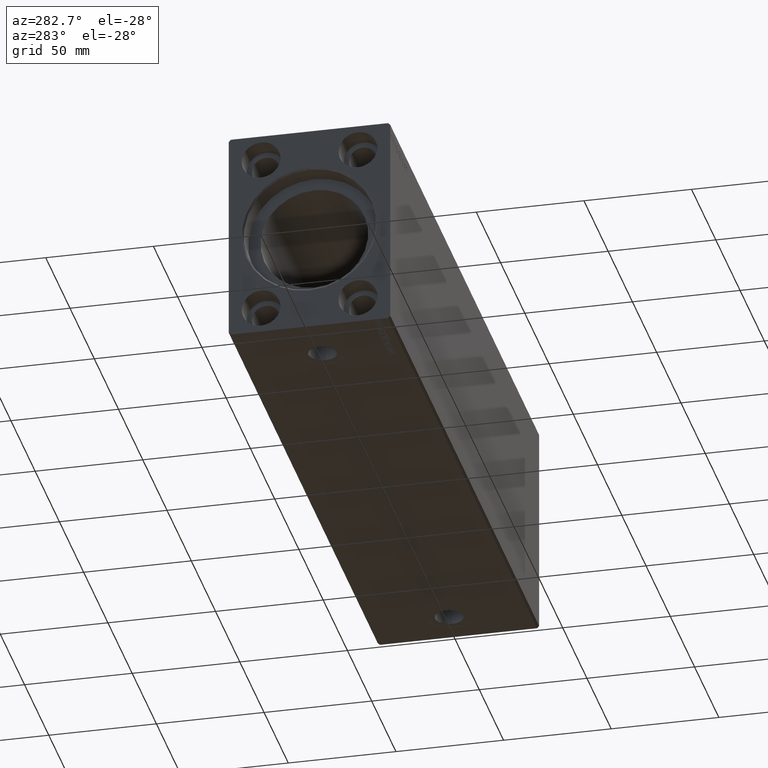
[diagram: clean part render]
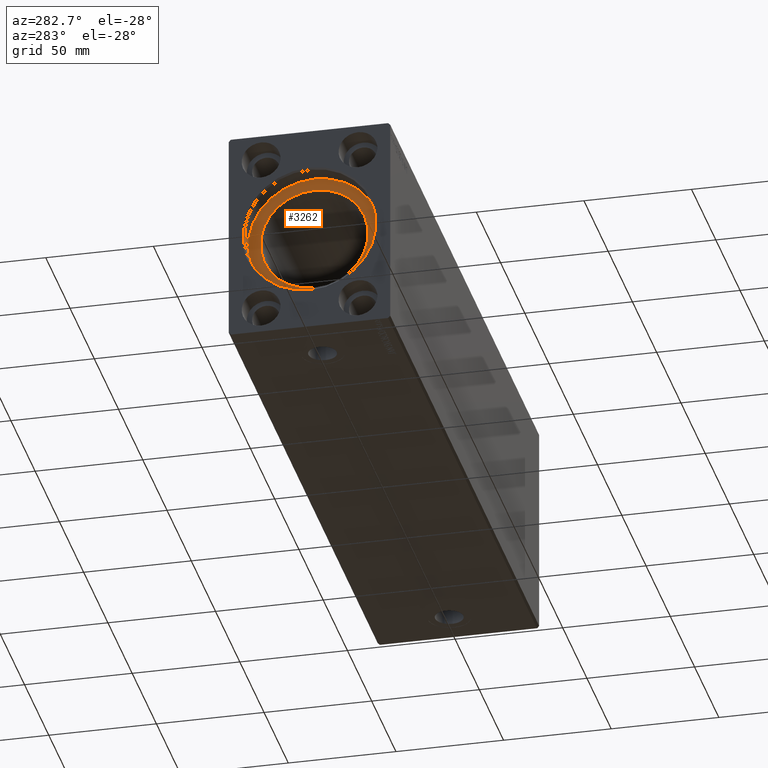
[diagram: same view with one face highlighted and labeled with its STEP entity id]
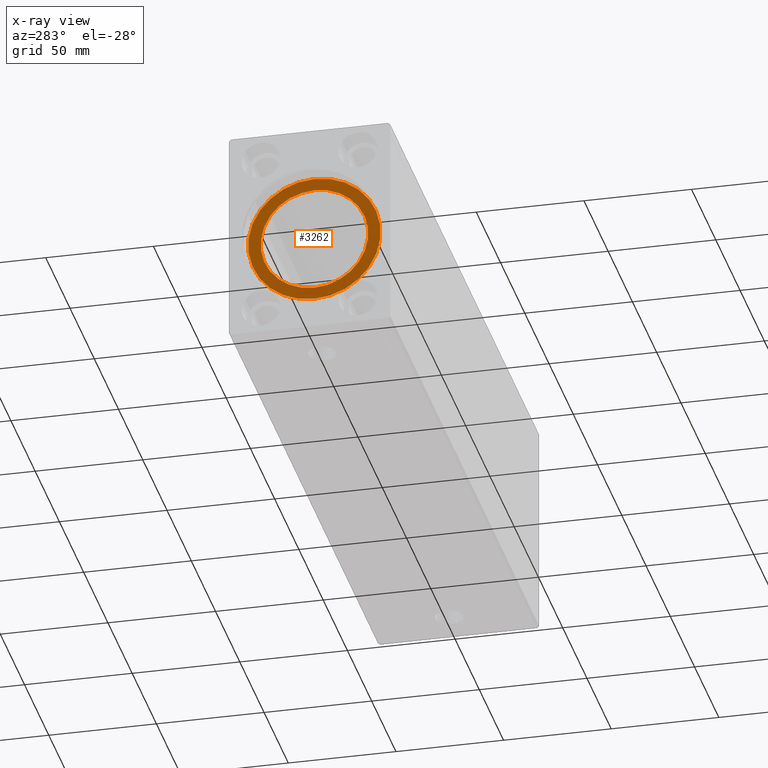
[diagram: x-ray of the same camera — body ghosted, the highlighted face saturated]
A machine part, auxiliary view. The second image highlights one B-rep face of the part: STEP entity #3262.
The next image is the same camera in x-ray: the body ghosted, the highlighted face saturated — about 0% of this face is hidden behind the body in this view.
In plain terms, the highlighted planar face has unit normal (-1, 0, 0).
Its self-contained STEP definition (entity closure, byte-faithful):
#2884 = CARTESIAN_POINT ( 'NONE',  ( 10.00000000000000000, 3.765788907378111328E-15, -30.75000000000000355 ) ) ;
#3262 = ADVANCED_FACE ( 'NONE', ( #9977, #19857 ), #9763, .T. ) ;
#4202 = CARTESIAN_POINT ( 'NONE',  ( 10.00000000000000888, 0.000000000000000000, 0.000000000000000000 ) ) ;
#4645 = CARTESIAN_POINT ( 'NONE',  ( 10.00000000000000000, 0.000000000000000000, 0.000000000000000000 ) ) ;
#5324 = AXIS2_PLACEMENT_3D ( 'NONE', #6145, #37049, #17081 ) ;
#6145 = CARTESIAN_POINT ( 'NONE',  ( 10.00000000000000888, 0.000000000000000000, 0.000000000000000000 ) ) ;
#6750 = CARTESIAN_POINT ( 'NONE',  ( 10.00000000000000000, 0.000000000000000000, 0.000000000000000000 ) ) ;
#8270 = CARTESIAN_POINT ( 'NONE',  ( 10.00000000000000888, 3.061616997868383043E-15, -25.00000000000000000 ) ) ;
#8732 = EDGE_CURVE ( 'NONE', #31361, #38836, #36799, .T. ) ;
#9763 = PLANE ( 'NONE',  #41364 ) ;
#9977 = FACE_BOUND ( 'NONE', #26680, .T. ) ;
#10457 = DIRECTION ( 'NONE',  ( 0.000000000000000000, 0.000000000000000000, 1.000000000000000000 ) ) ;
#11579 = ORIENTED_EDGE ( 'NONE', *, *, #17485, .T. ) ;
#13102 = EDGE_CURVE ( 'NONE', #38836, #31361, #21801, .T. ) ;
#13398 = ORIENTED_EDGE ( 'NONE', *, *, #41676, .T. ) ;
#13625 = DIRECTION ( 'NONE',  ( 0.000000000000000000, 0.000000000000000000, 1.000000000000000000 ) ) ;
#14253 = AXIS2_PLACEMENT_3D ( 'NONE', #24863, #27665, #40768 ) ;
#14753 = DIRECTION ( 'NONE',  ( 0.000000000000000000, 0.000000000000000000, 1.000000000000000000 ) ) ;
#15780 = CARTESIAN_POINT ( 'NONE',  ( 10.00000000000000000, 0.000000000000000000, 30.75000000000000355 ) ) ;
#16628 = DIRECTION ( 'NONE',  ( -1.000000000000000000, 0.000000000000000000, 0.000000000000000000 ) ) ;
#17081 = DIRECTION ( 'NONE',  ( 0.000000000000000000, 0.000000000000000000, 1.000000000000000000 ) ) ;
#17485 = EDGE_CURVE ( 'NONE', #37618, #30088, #36877, .T. ) ;
#19857 = FACE_OUTER_BOUND ( 'NONE', #33348, .T. ) ;
#20483 = ORIENTED_EDGE ( 'NONE', *, *, #13102, .F. ) ;
#21801 = CIRCLE ( 'NONE', #5324, 25.00000000000000000 ) ;
#21834 = DIRECTION ( 'NONE',  ( -1.000000000000000000, 0.000000000000000000, 0.000000000000000000 ) ) ;
#22924 = AXIS2_PLACEMENT_3D ( 'NONE', #4645, #21834, #14753 ) ;
#24266 = CIRCLE ( 'NONE', #22924, 30.75000000000000355 ) ;
#24356 = ORIENTED_EDGE ( 'NONE', *, *, #8732, .F. ) ;
#24863 = CARTESIAN_POINT ( 'NONE',  ( 10.00000000000000000, 0.000000000000000000, 0.000000000000000000 ) ) ;
#26680 = EDGE_LOOP ( 'NONE', ( #20483, #24356 ) ) ;
#27665 = DIRECTION ( 'NONE',  ( -1.000000000000000000, 0.000000000000000000, 0.000000000000000000 ) ) ;
#27866 = AXIS2_PLACEMENT_3D ( 'NONE', #4202, #39664, #10457 ) ;
#30088 = VERTEX_POINT ( 'NONE', #15780 ) ;
#31361 = VERTEX_POINT ( 'NONE', #8270 ) ;
#33348 = EDGE_LOOP ( 'NONE', ( #13398, #11579 ) ) ;
#36799 = CIRCLE ( 'NONE', #27866, 25.00000000000000000 ) ;
#36877 = CIRCLE ( 'NONE', #14253, 30.75000000000000355 ) ;
#37049 = DIRECTION ( 'NONE',  ( -1.000000000000000000, 0.000000000000000000, 0.000000000000000000 ) ) ;
#37618 = VERTEX_POINT ( 'NONE', #2884 ) ;
#38836 = VERTEX_POINT ( 'NONE', #39446 ) ;
#39446 = CARTESIAN_POINT ( 'NONE',  ( 10.00000000000000888, 0.000000000000000000, 25.00000000000000000 ) ) ;
#39664 = DIRECTION ( 'NONE',  ( -1.000000000000000000, 0.000000000000000000, 0.000000000000000000 ) ) ;
#40768 = DIRECTION ( 'NONE',  ( 0.000000000000000000, 0.000000000000000000, 1.000000000000000000 ) ) ;
#41364 = AXIS2_PLACEMENT_3D ( 'NONE', #6750, #16628, #13625 ) ;
#41676 = EDGE_CURVE ( 'NONE', #30088, #37618, #24266, .T. ) ;